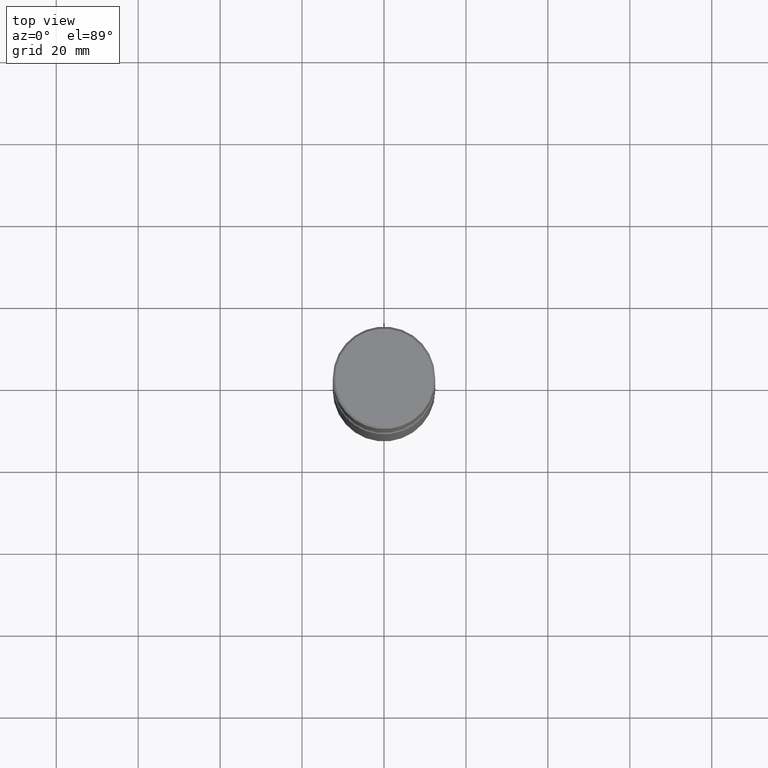
[diagram: clean part render]
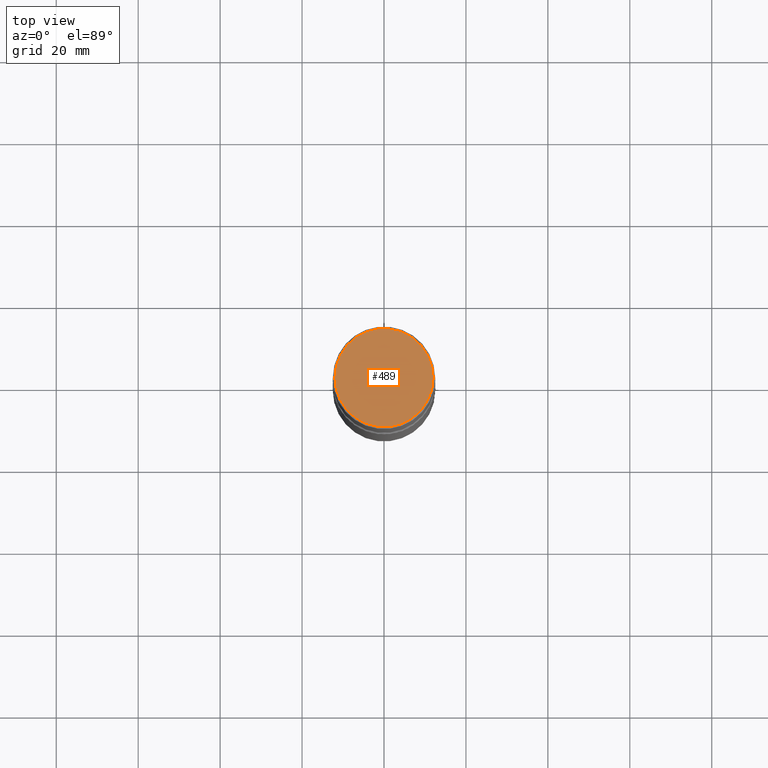
[diagram: same view with one face highlighted and labeled with its STEP entity id]
A machine part, top view. The second image highlights one B-rep face of the part: STEP entity #489.
In plain terms, the highlighted planar face has unit normal (0, -0, -1).
Its self-contained STEP definition (entity closure, byte-faithful):
#11 = FACE_OUTER_BOUND ( 'NONE', #429, .T. ) ;
#14 = DIRECTION ( 'NONE',  ( 2.438088387897960049E-29, -3.491481338843145188E-15, -1.000000000000000000 ) ) ;
#30 = VERTEX_POINT ( 'NONE', #58 ) ;
#31 = DIRECTION ( 'NONE',  ( 1.000000000000000000, -6.982962677686265922E-15, 4.876006802227162976E-29 ) ) ;
#58 = CARTESIAN_POINT ( 'NONE',  ( 0.4721499999999996255, -3.342703923013973791E-15, 1.280553747032445131E-17 ) ) ;
#79 = DIRECTION ( 'NONE',  ( -2.445468806185136597E-29, 3.491481338843145583E-15, 1.000000000000000000 ) ) ;
#91 = CARTESIAN_POINT ( 'NONE',  ( 3.297005828269567997E-15, 0.4721499999999996255, -1.642100145399639275E-15 ) ) ;
#109 = AXIS2_PLACEMENT_3D ( 'NONE', #91, #14, #132 ) ;
#114 = ORIENTED_EDGE ( 'NONE', *, *, #197, .T. ) ;
#129 = PLANE ( 'NONE',  #109 ) ;
#132 = DIRECTION ( 'NONE',  ( -1.000000000000000000, 6.982962677686265922E-15, -4.876176775795935793E-29 ) ) ;
#197 = EDGE_CURVE ( 'NONE', #329, #30, #365, .T. ) ;
#230 = DIRECTION ( 'NONE',  ( -2.445468806185136597E-29, 3.491481338843145583E-15, 1.000000000000000000 ) ) ;
#240 = CIRCLE ( 'NONE', #342, 0.4721499999999996255 ) ;
#279 = CARTESIAN_POINT ( 'NONE',  ( -0.4721499999999996255, 3.331920641657999646E-15, 1.280553747027805488E-17 ) ) ;
#297 = EDGE_CURVE ( 'NONE', #30, #329, #240, .T. ) ;
#310 = AXIS2_PLACEMENT_3D ( 'NONE', #420, #230, #31 ) ;
#329 = VERTEX_POINT ( 'NONE', #279 ) ;
#342 = AXIS2_PLACEMENT_3D ( 'NONE', #434, #79, #384 ) ;
#365 = CIRCLE ( 'NONE', #310, 0.4721499999999996255 ) ;
#384 = DIRECTION ( 'NONE',  ( 1.000000000000000000, -6.982962677686265922E-15, 4.876006802227162976E-29 ) ) ;
#420 = CARTESIAN_POINT ( 'NONE',  ( -3.131554243005659264E-46, 4.471029511141341874E-32, 1.280553747030123384E-17 ) ) ;
#429 = EDGE_LOOP ( 'NONE', ( #114, #502 ) ) ;
#434 = CARTESIAN_POINT ( 'NONE',  ( -3.131554243005659264E-46, 4.471029511141341874E-32, 1.280553747030123384E-17 ) ) ;
#489 = ADVANCED_FACE ( 'NONE', ( #11 ), #129, .F. ) ;
#502 = ORIENTED_EDGE ( 'NONE', *, *, #297, .T. ) ;